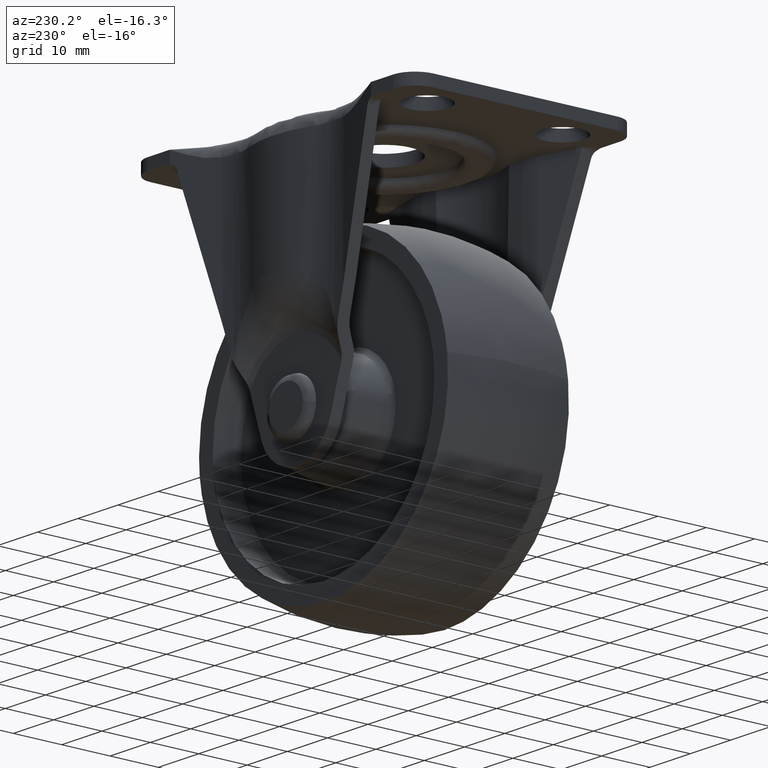
[diagram: clean part render]
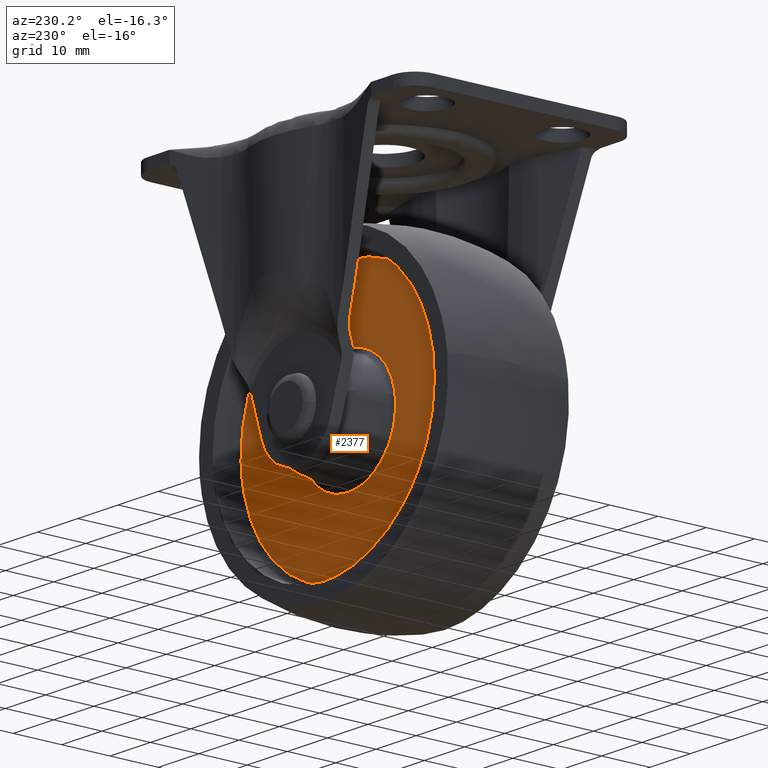
[diagram: same view with one face highlighted and labeled with its STEP entity id]
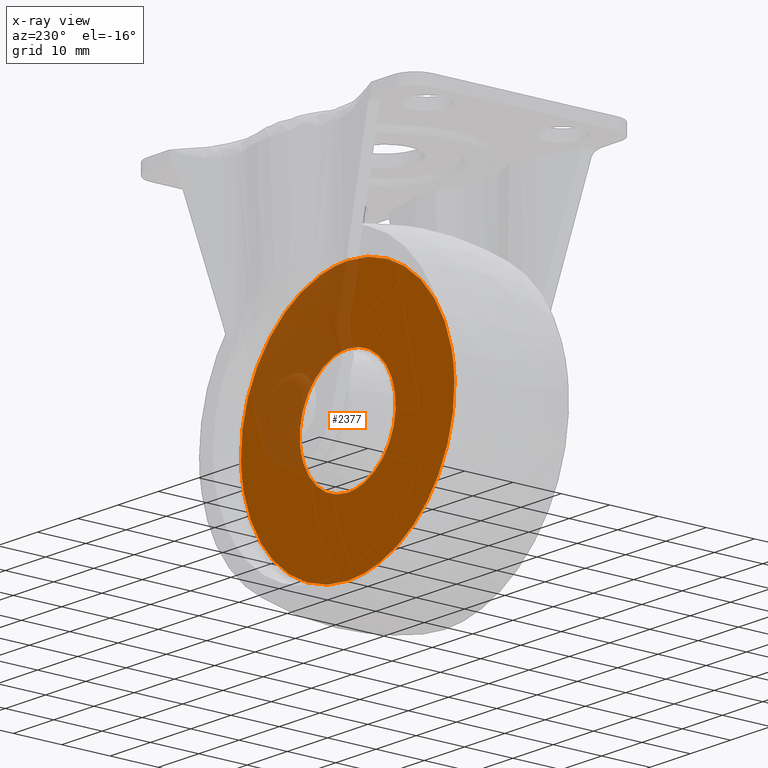
[diagram: x-ray of the same camera — body ghosted, the highlighted face saturated]
A machine part, auxiliary view. The second image highlights one B-rep face of the part: STEP entity #2377.
The next image is the same camera in x-ray: the body ghosted, the highlighted face saturated — about 26% of this face is hidden behind the body in this view.
In plain terms, the highlighted face is a freeform B-spline surface patch.
Its self-contained STEP definition (entity closure, byte-faithful):
#1198=CARTESIAN_POINT('',(-26.491631025600991,7.500000000000000,0.665947529667435));
#1199=VERTEX_POINT('',#1198);
#1210=CARTESIAN_POINT('',(0.0,7.500000000000000,-26.500000000000000));
#1211=VERTEX_POINT('',#1210);
#1212=CARTESIAN_POINT('',(-26.491631025600991,7.500000000000000,0.665947529667435));
#1213=CARTESIAN_POINT('',(-26.511010608530139,7.499999999999983,-0.104753617269989));
#1214=CARTESIAN_POINT('',(-26.495690892487652,7.500000000000018,-0.931389994812635));
#1215=CARTESIAN_POINT('',(-26.438393980806921,7.499999999999990,-1.810591584964972));
#1216=CARTESIAN_POINT('',(-26.425576078612639,7.500000000000005,-1.975279299312726));
#1217=CARTESIAN_POINT('',(-26.409534459403059,7.500000000000001,-2.194961843243945));
#1218=CARTESIAN_POINT('',(-26.218221120153089,7.500000000000004,-4.389477065386177));
#1219=CARTESIAN_POINT('',(-25.540144041605959,7.499999999999990,-7.589034952852297));
#1220=CARTESIAN_POINT('',(-23.731374733099940,7.500000000000053,-12.035533054585350));
#1221=CARTESIAN_POINT('',(-21.505458552510419,7.499999999999893,-15.731000898839159));
#1222=CARTESIAN_POINT('',(-18.067737736579222,7.499999999999895,-19.627465298483319));
#1223=CARTESIAN_POINT('',(-14.004079542051191,7.500000000000550,-22.706051416061040));
#1224=CARTESIAN_POINT('',(-9.422116197891526,7.499999999998252,-24.912751847575301));
#1225=CARTESIAN_POINT('',(-4.845882929334457,7.500000000006125,-26.200339250499709));
#1226=CARTESIAN_POINT('',(-1.652032646855209,7.499999999989799,-26.500190378969471));
#1227=CARTESIAN_POINT('',(0.0,7.500000000000000,-26.500000000000000));
#1228=B_SPLINE_CURVE_WITH_KNOTS('',3,(#1212,#1213,#1214,#1215,#1216,#1217,#1218,#1219,#1220,#1221,#1222,#1223,#1224,#1225,#1226,#1227),.UNSPECIFIED.,.F.,.U.,(4,1,1,1,1,1,1,1,1,1,1,1,1,4),(0.000366293388566,2.313204573854470,2.478347967800524,2.643552674633064,2.808757381465654,3.139166779928338,9.251744266634887,12.555828839131880,17.511967176300079,22.137559039224609,28.084870524492811,32.710601026208927,37.336328624456272,42.292371939891183),.UNSPECIFIED.);
#1229=EDGE_CURVE('',#1199,#1211,#1228,.T.);
#1231=CARTESIAN_POINT('',(26.491631025600991,7.500000000000000,-0.665947529667438));
#1232=VERTEX_POINT('',#1231);
#1233=CARTESIAN_POINT('',(0.0,7.500000000000000,-26.500000000000000));
#1234=CARTESIAN_POINT('',(1.493304826398888,7.499999999999996,-26.500042112369780));
#1235=CARTESIAN_POINT('',(5.013394758182766,7.500000000000003,-26.202010622894900));
#1236=CARTESIAN_POINT('',(9.651763168174460,7.500000000000004,-24.849324926353329));
#1237=CARTESIAN_POINT('',(13.463838207812890,7.500000000000005,-22.907875446843310));
#1238=CARTESIAN_POINT('',(16.554488386481591,7.499999999999991,-20.803845693812541));
#1239=CARTESIAN_POINT('',(19.171240937487742,7.500000000000005,-18.430737861409320));
#1240=CARTESIAN_POINT('',(21.617861848245720,7.499999999999993,-15.461961250041041));
#1241=CARTESIAN_POINT('',(23.425445741360239,7.500000000000001,-12.555966134245100));
#1242=CARTESIAN_POINT('',(24.918983183266089,7.500000000000008,-9.243823658426924));
#1243=CARTESIAN_POINT('',(26.084242223183882,7.499999999999988,-5.350460000271200));
#1244=CARTESIAN_POINT('',(26.448933887094231,7.500000000000008,-2.372089860226730));
#1245=CARTESIAN_POINT('',(26.491631025600991,7.500000000000000,-0.665947529667438));
#1246=B_SPLINE_CURVE_WITH_KNOTS('',3,(#1233,#1234,#1235,#1236,#1237,#1238,#1239,#1240,#1241,#1242,#1243,#1244,#1245),.UNSPECIFIED.,.F.,.U.,(4,1,1,1,1,1,1,1,1,1,4),(0.000000027106850,4.479985296996084,10.560089509733260,14.400121234454870,17.280161250655009,21.760170990465770,24.960189028203018,28.800217699689998,32.000272994104392,35.840310870559371,40.960333871008778),.UNSPECIFIED.);
#1247=EDGE_CURVE('',#1211,#1232,#1246,.T.);
#1291=CARTESIAN_POINT('',(0.0,7.500000000000000,26.500000000000000));
#1292=VERTEX_POINT('',#1291);
#1293=CARTESIAN_POINT('',(26.491631025600991,7.500000000000000,-0.665947529667438));
#1294=CARTESIAN_POINT('',(26.511010461983339,7.500000000000015,0.104753723158890));
#1295=CARTESIAN_POINT('',(26.495690857109249,7.499999999999979,0.931390070642406));
#1296=CARTESIAN_POINT('',(26.438393986231411,7.500000000000004,1.810591575804337));
#1297=CARTESIAN_POINT('',(26.425576810510790,7.500000000000001,1.975279456933893));
#1298=CARTESIAN_POINT('',(26.409588567762750,7.500000000000004,2.194971819490095));
#1299=CARTESIAN_POINT('',(26.294406421655520,7.499999999999977,3.511621323149366));
#1300=CARTESIAN_POINT('',(25.884342362159352,7.500000000000021,6.072770954592257));
#1301=CARTESIAN_POINT('',(24.696802829357530,7.500000000000002,9.925146053335737));
#1302=CARTESIAN_POINT('',(22.925854786417759,7.499999999999999,13.489465044164159));
#1303=CARTESIAN_POINT('',(20.710827857024441,7.499999999999846,16.653425651811411));
#1304=CARTESIAN_POINT('',(18.100882854538181,7.500000000000336,19.502483534565570));
#1305=CARTESIAN_POINT('',(15.075817357933341,7.500000000000269,21.915209383355268));
#1306=CARTESIAN_POINT('',(11.062269156670760,7.499999999998396,24.233125249513812));
#1307=CARTESIAN_POINT('',(6.167444674777403,7.500000000004862,26.014835406062929));
#1308=CARTESIAN_POINT('',(2.092598882678074,7.499999999993699,26.500467142209470));
#1309=CARTESIAN_POINT('',(0.0,7.500000000000000,26.500000000000000));
#1310=B_SPLINE_CURVE_WITH_KNOTS('',3,(#1293,#1294,#1295,#1296,#1297,#1298,#1299,#1300,#1301,#1302,#1303,#1304,#1305,#1306,#1307,#1308,#1309),.UNSPECIFIED.,.F.,.U.,(4,1,1,1,1,1,1,1,1,1,1,1,1,1,4),(0.000366293384047,2.313204573850364,2.478347967796438,2.643552674629063,2.808757381461668,3.139166779924423,6.608491683916945,10.573376425817679,15.199104092293121,18.503187305794601,22.137559039224460,26.763234496903529,30.067326153224329,36.014693547512849,42.292371939891169),.UNSPECIFIED.);
#1311=EDGE_CURVE('',#1232,#1292,#1310,.T.);
#1313=CARTESIAN_POINT('',(0.0,7.500000000000000,26.500000000000000));
#1314=CARTESIAN_POINT('',(-1.920030771926591,7.500000000000026,26.500391873825329));
#1315=CARTESIAN_POINT('',(-4.799861412085382,7.499999999999957,26.185536172252760));
#1316=CARTESIAN_POINT('',(-8.607374326559821,7.500000000000068,25.124750301292089));
#1317=CARTESIAN_POINT('',(-11.477855410455540,7.499999999999920,23.956818364124128));
#1318=CARTESIAN_POINT('',(-14.934191463969080,7.500000000000052,22.036601824772958));
#1319=CARTESIAN_POINT('',(-18.379610373104239,7.500000000000028,19.305825665207330));
#1320=CARTESIAN_POINT('',(-21.672309734401932,7.499999999999950,15.501558801708519));
#1321=CARTESIAN_POINT('',(-24.065354425878940,7.500000000000027,11.438647894678320));
#1322=CARTESIAN_POINT('',(-25.906579250960270,7.499999999999989,6.412843678061603));
#1323=CARTESIAN_POINT('',(-26.438555531013542,7.500000000000011,2.798671208356447));
#1324=CARTESIAN_POINT('',(-26.491631025600991,7.500000000000000,0.665947529667435));
#1325=B_SPLINE_CURVE_WITH_KNOTS('',3,(#1313,#1314,#1315,#1316,#1317,#1318,#1319,#1320,#1321,#1322,#1323,#1324),.UNSPECIFIED.,.F.,.U.,(4,1,1,1,1,1,1,1,1,4),(0.000000027104235,5.760003865268267,8.640059541803851,11.840103879982321,15.040130629856090,20.480166949057761,24.960189028203079,30.080238888818101,34.560304820201893,40.960333871008757),.UNSPECIFIED.);
#1326=EDGE_CURVE('',#1292,#1199,#1325,.T.);
#1355=CARTESIAN_POINT('',(11.827116693283530,7.500000000000000,-1.410577519490422));
#1356=VERTEX_POINT('',#1355);
#1357=CARTESIAN_POINT('',(0.0,7.500000000000000,11.910936918625261));
#1358=VERTEX_POINT('',#1357);
#1359=CARTESIAN_POINT('',(11.827116693283530,7.500000000000000,-1.410577519490422));
#1360=CARTESIAN_POINT('',(11.926553779570350,7.500000000000008,-0.578019308313523));
#1361=CARTESIAN_POINT('',(11.947758674790601,7.500000000000007,1.055468289489065));
#1362=CARTESIAN_POINT('',(11.526865127082029,7.499999999999964,3.226859957761315));
#1363=CARTESIAN_POINT('',(10.743101502890751,7.500000000000061,5.289904761843014));
#1364=CARTESIAN_POINT('',(9.738548108407914,7.499999999999997,6.960965595992660));
#1365=CARTESIAN_POINT('',(8.295948325990036,7.499999999999973,8.629678833457637));
#1366=CARTESIAN_POINT('',(6.461678533640025,7.500000000000074,10.132651620417731));
#1367=CARTESIAN_POINT('',(3.615541044299592,7.499999999999845,11.526566281792110));
#1368=CARTESIAN_POINT('',(1.310211554703882,7.500000000000095,11.911693964932621));
#1369=CARTESIAN_POINT('',(0.0,7.500000000000000,11.910936918625261));
#1370=B_SPLINE_CURVE_WITH_KNOTS('',3,(#1359,#1360,#1361,#1362,#1363,#1364,#1365,#1366,#1367,#1368,#1369),.UNSPECIFIED.,.F.,.U.,(4,1,1,1,1,1,1,1,4),(0.000000297426954,2.515409362558859,4.873707238951290,6.603093167615230,9.118633162027381,10.690695518919121,13.206135593389851,16.193291983372230,20.123697753867798),.UNSPECIFIED.);
#1371=EDGE_CURVE('',#1356,#1358,#1370,.T.);
#1386=CARTESIAN_POINT('',(-11.727083680884689,7.500000000000000,2.084688614768973));
#1387=VERTEX_POINT('',#1386);
#1398=CARTESIAN_POINT('',(0.0,7.500000000000000,11.910936918625261));
#1399=CARTESIAN_POINT('',(-0.735523715994020,7.500000000000004,11.911009947083960));
#1400=CARTESIAN_POINT('',(-2.206543546628906,7.500000000000009,11.774253089066780));
#1401=CARTESIAN_POINT('',(-4.295815546352778,7.499999999999996,11.178292318967561));
#1402=CARTESIAN_POINT('',(-6.516709239358689,7.500000000000008,10.084548836809200));
#1403=CARTESIAN_POINT('',(-8.525711760700137,7.500000000000008,8.474502385372652));
#1404=CARTESIAN_POINT('',(-10.020627431520190,7.500000000000004,6.551215293856830));
#1405=CARTESIAN_POINT('',(-11.115726965857890,7.500000000000004,4.480735475715665));
#1406=CARTESIAN_POINT('',(-11.560725625667370,7.499999999999995,3.021916173319309));
#1407=CARTESIAN_POINT('',(-11.727083680884689,7.500000000000000,2.084688614768973));
#1408=B_SPLINE_CURVE_WITH_KNOTS('',3,(#1398,#1399,#1400,#1401,#1402,#1403,#1404,#1405,#1406,#1407),.UNSPECIFIED.,.F.,.U.,(4,1,1,1,1,1,1,4),(0.000000205209457,2.206566743604970,4.413165521522867,6.489991890261491,9.605114990992238,12.071290384212819,13.758692665193241,16.614256697111468),.UNSPECIFIED.);
#1409=EDGE_CURVE('',#1358,#1387,#1408,.T.);
#1443=CARTESIAN_POINT('',(0.0,7.500000000000000,-11.910936918625261));
#1444=VERTEX_POINT('',#1443);
#1445=CARTESIAN_POINT('',(0.0,7.500000000000000,-11.910936918625261));
#1446=CARTESIAN_POINT('',(0.810737610089879,7.499999999999960,-11.911036197459010));
#1447=CARTESIAN_POINT('',(2.522289591907234,7.500000000000072,-11.735576066390010));
#1448=CARTESIAN_POINT('',(5.063117075305257,7.499999999999969,-10.900413444055729));
#1449=CARTESIAN_POINT('',(7.344460132515176,7.500000000000012,-9.500968258674984));
#1450=CARTESIAN_POINT('',(8.967285605411115,7.500000000000031,-7.922624095353942));
#1451=CARTESIAN_POINT('',(10.171692396231411,7.499999999999926,-6.287528610809773));
#1452=CARTESIAN_POINT('',(11.240498698322410,7.500000000000121,-4.243507005647241));
#1453=CARTESIAN_POINT('',(11.699444257155889,7.499999999999846,-2.484031204288792));
#1454=CARTESIAN_POINT('',(11.827116693283530,7.500000000000000,-1.410577519490422));
#1455=B_SPLINE_CURVE_WITH_KNOTS('',3,(#1445,#1446,#1447,#1448,#1449,#1450,#1451,#1452,#1453,#1454),.UNSPECIFIED.,.F.,.U.,(4,1,1,1,1,1,1,4),(0.000000219308124,2.432223901121246,5.134724349798818,7.972356011986587,10.404501556298451,11.890894525895311,14.052885076311300,17.295852977338591),.UNSPECIFIED.);
#1456=EDGE_CURVE('',#1444,#1356,#1455,.T.);
#1458=CARTESIAN_POINT('',(-11.727083680884689,7.500000000000000,2.084688614768973));
#1459=CARTESIAN_POINT('',(-11.840914767790769,7.499999999999994,1.444578668471134));
#1460=CARTESIAN_POINT('',(-11.968515141956050,7.500000000000003,0.091537120365743));
#1461=CARTESIAN_POINT('',(-11.814632960682120,7.500000000000017,-1.915118178725750));
#1462=CARTESIAN_POINT('',(-11.216552302468230,7.499999999999993,-4.287286881815482));
#1463=CARTESIAN_POINT('',(-10.087534642585920,7.499999999999991,-6.535123062093352));
#1464=CARTESIAN_POINT('',(-8.304564215929615,7.500000000000008,-8.662713664215541));
#1465=CARTESIAN_POINT('',(-6.110264963990273,7.499999999999990,-10.372587782600821));
#1466=CARTESIAN_POINT('',(-3.250684749722207,7.499999999999892,-11.613246374858120));
#1467=CARTESIAN_POINT('',(-1.083624877809442,7.500000000000209,-11.911296740101101));
#1468=CARTESIAN_POINT('',(0.0,7.500000000000000,-11.910936918625261));
#1469=B_SPLINE_CURVE_WITH_KNOTS('',3,(#1458,#1459,#1460,#1461,#1462,#1463,#1464,#1465,#1466,#1467,#1468),.UNSPECIFIED.,.F.,.U.,(4,1,1,1,1,1,1,1,4),(0.000000295625416,1.950471921347255,4.063512761468228,6.014050507338149,9.264939708134090,11.540362092398439,14.303633898737431,17.554489048814521,20.805298848590990),.UNSPECIFIED.);
#1470=EDGE_CURVE('',#1387,#1444,#1469,.T.);
#2360=CARTESIAN_POINT('',(-29.138144364997729,7.500000000000000,29.147349897275721));
#2361=CARTESIAN_POINT('',(-29.138144364997729,7.500000000000000,-29.147351318846489));
#2362=CARTESIAN_POINT('',(29.138146259826829,7.500000000000000,29.147349897275721));
#2363=CARTESIAN_POINT('',(29.138146259826829,7.500000000000000,-29.147351318846489));
#2364=B_SPLINE_SURFACE_WITH_KNOTS('',1,1,((#2360,#2362),(#2361,#2363)),.UNSPECIFIED.,.F.,.F.,.U.,(2,2),(2,2),(0.0,58.294701216122213),(0.0,58.276290624824568),.UNSPECIFIED.);
#2365=ORIENTED_EDGE('',*,*,#1229,.F.);
#2366=ORIENTED_EDGE('',*,*,#1326,.F.);
#2367=ORIENTED_EDGE('',*,*,#1311,.F.);
#2368=ORIENTED_EDGE('',*,*,#1247,.F.);
#2369=EDGE_LOOP('',(#2365,#2366,#2367,#2368));
#2370=FACE_OUTER_BOUND('',#2369,.T.);
#2371=ORIENTED_EDGE('',*,*,#1409,.T.);
#2372=ORIENTED_EDGE('',*,*,#1470,.T.);
#2373=ORIENTED_EDGE('',*,*,#1456,.T.);
#2374=ORIENTED_EDGE('',*,*,#1371,.T.);
#2375=EDGE_LOOP('',(#2371,#2372,#2373,#2374));
#2376=FACE_BOUND('',#2375,.T.);
#2377=ADVANCED_FACE('',(#2370,#2376),#2364,.F.);